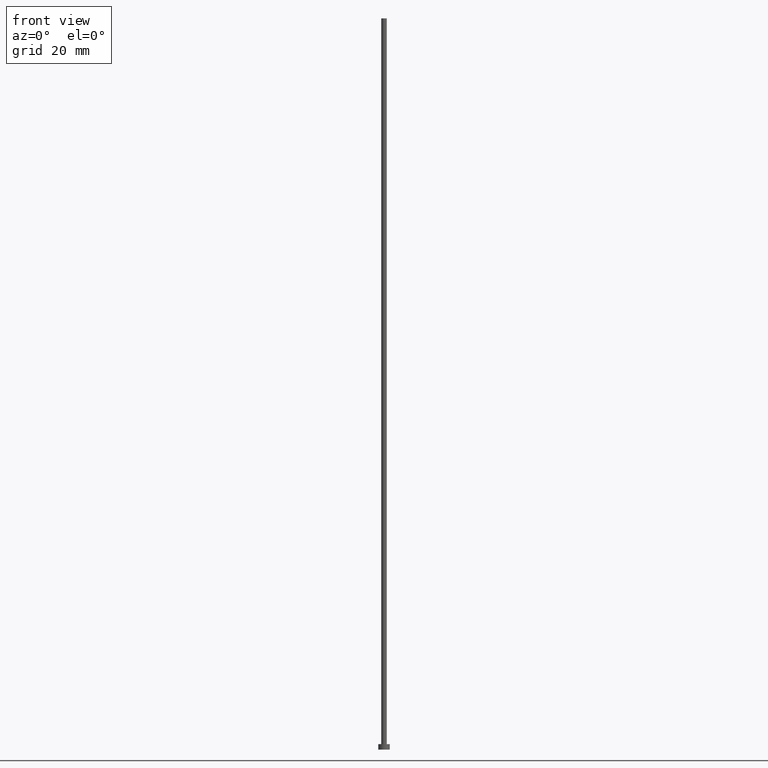
[diagram: clean part render]
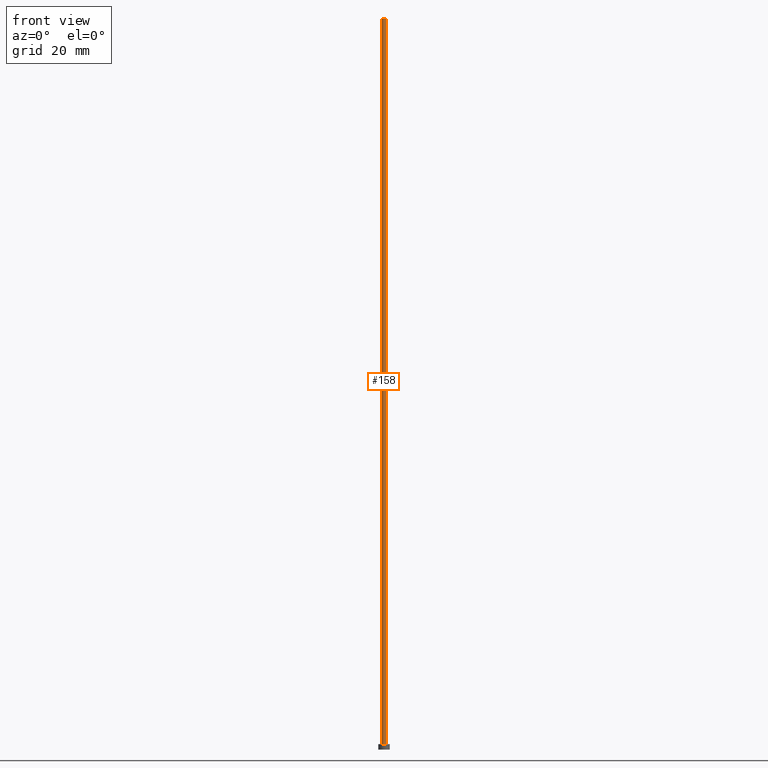
[diagram: same view with one face highlighted and labeled with its STEP entity id]
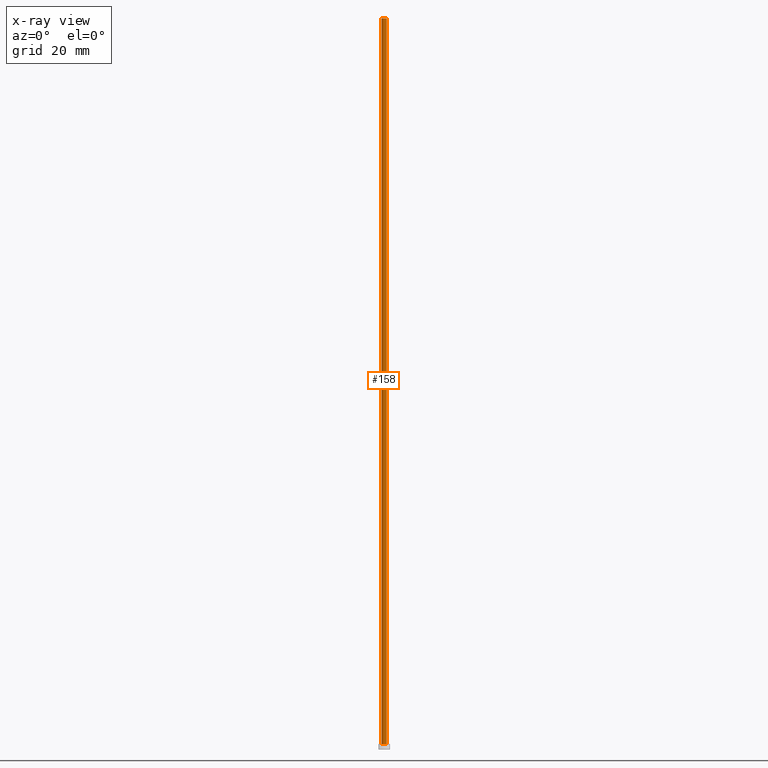
[diagram: x-ray of the same camera — body ghosted, the highlighted face saturated]
A machine part, front view. The second image highlights one B-rep face of the part: STEP entity #158.
The next image is the same camera in x-ray: the body ghosted, the highlighted face saturated — about 0% of this face is hidden behind the body in this view.
In plain terms, the highlighted cylindrical surface (edge-blend (fillet) strip) has radius 0.6 mm, axis along (-0, -0, -1).
Its self-contained STEP definition (entity closure, byte-faithful):
#4 = VECTOR ( 'NONE', #180, 1000.000000000000000 ) ;
#6 = DIRECTION ( 'NONE',  ( -0.000000000000000000, -0.000000000000000000, -1.000000000000000000 ) ) ;
#22 = ORIENTED_EDGE ( 'NONE', *, *, #76, .T. ) ;
#25 = CIRCLE ( 'NONE', #211, 0.5999999999999999778 ) ;
#32 = CARTESIAN_POINT ( 'NONE',  ( 0.5999999999999999778, 7.347880794884117764E-17, 160.0000000000000284 ) ) ;
#34 = LINE ( 'NONE', #32, #141 ) ;
#36 = CYLINDRICAL_SURFACE ( 'NONE', #254, 0.5999999999999999778 ) ;
#42 = EDGE_CURVE ( 'NONE', #196, #43, #34, .T. ) ;
#43 = VERTEX_POINT ( 'NONE', #53 ) ;
#53 = CARTESIAN_POINT ( 'NONE',  ( 0.5999999999999999778, 7.347880794884117764E-17, 1.199999999999999956 ) ) ;
#55 = DIRECTION ( 'NONE',  ( 1.000000000000000000, 0.000000000000000000, 0.000000000000000000 ) ) ;
#68 = CARTESIAN_POINT ( 'NONE',  ( 0.000000000000000000, 0.000000000000000000, 1.199999999999999956 ) ) ;
#76 = EDGE_CURVE ( 'NONE', #149, #81, #181, .T. ) ;
#77 = DIRECTION ( 'NONE',  ( 0.000000000000000000, 0.000000000000000000, 1.000000000000000000 ) ) ;
#81 = VERTEX_POINT ( 'NONE', #242 ) ;
#92 = CARTESIAN_POINT ( 'NONE',  ( 0.000000000000000000, 0.000000000000000000, 160.0000000000000284 ) ) ;
#114 = ORIENTED_EDGE ( 'NONE', *, *, #210, .F. ) ;
#115 = EDGE_CURVE ( 'NONE', #81, #43, #187, .T. ) ;
#132 = ORIENTED_EDGE ( 'NONE', *, *, #115, .T. ) ;
#139 = CARTESIAN_POINT ( 'NONE',  ( -0.5999999999999999778, 0.000000000000000000, 160.0000000000000284 ) ) ;
#141 = VECTOR ( 'NONE', #6, 1000.000000000000000 ) ;
#149 = VERTEX_POINT ( 'NONE', #219 ) ;
#158 = ADVANCED_FACE ( 'NONE', ( #227 ), #36, .T. ) ;
#162 = DIRECTION ( 'NONE',  ( -0.000000000000000000, -0.000000000000000000, -1.000000000000000000 ) ) ;
#163 = DIRECTION ( 'NONE',  ( 1.000000000000000000, 0.000000000000000000, 0.000000000000000000 ) ) ;
#178 = DIRECTION ( 'NONE',  ( -1.000000000000000000, 0.000000000000000000, 0.000000000000000000 ) ) ;
#180 = DIRECTION ( 'NONE',  ( -0.000000000000000000, -0.000000000000000000, -1.000000000000000000 ) ) ;
#181 = LINE ( 'NONE', #139, #4 ) ;
#186 = CARTESIAN_POINT ( 'NONE',  ( 0.000000000000000000, 0.000000000000000000, 160.0000000000000284 ) ) ;
#187 = CIRCLE ( 'NONE', #220, 0.5999999999999999778 ) ;
#196 = VERTEX_POINT ( 'NONE', #252 ) ;
#209 = ORIENTED_EDGE ( 'NONE', *, *, #42, .F. ) ;
#210 = EDGE_CURVE ( 'NONE', #149, #196, #25, .T. ) ;
#211 = AXIS2_PLACEMENT_3D ( 'NONE', #186, #77, #163 ) ;
#213 = EDGE_LOOP ( 'NONE', ( #209, #114, #22, #132 ) ) ;
#219 = CARTESIAN_POINT ( 'NONE',  ( -0.5999999999999999778, 0.000000000000000000, 160.0000000000000284 ) ) ;
#220 = AXIS2_PLACEMENT_3D ( 'NONE', #68, #224, #55 ) ;
#224 = DIRECTION ( 'NONE',  ( 0.000000000000000000, 0.000000000000000000, 1.000000000000000000 ) ) ;
#227 = FACE_OUTER_BOUND ( 'NONE', #213, .T. ) ;
#242 = CARTESIAN_POINT ( 'NONE',  ( -0.5999999999999999778, 0.000000000000000000, 1.199999999999999956 ) ) ;
#252 = CARTESIAN_POINT ( 'NONE',  ( 0.5999999999999999778, 7.347880794884117764E-17, 160.0000000000000284 ) ) ;
#254 = AXIS2_PLACEMENT_3D ( 'NONE', #92, #162, #178 ) ;